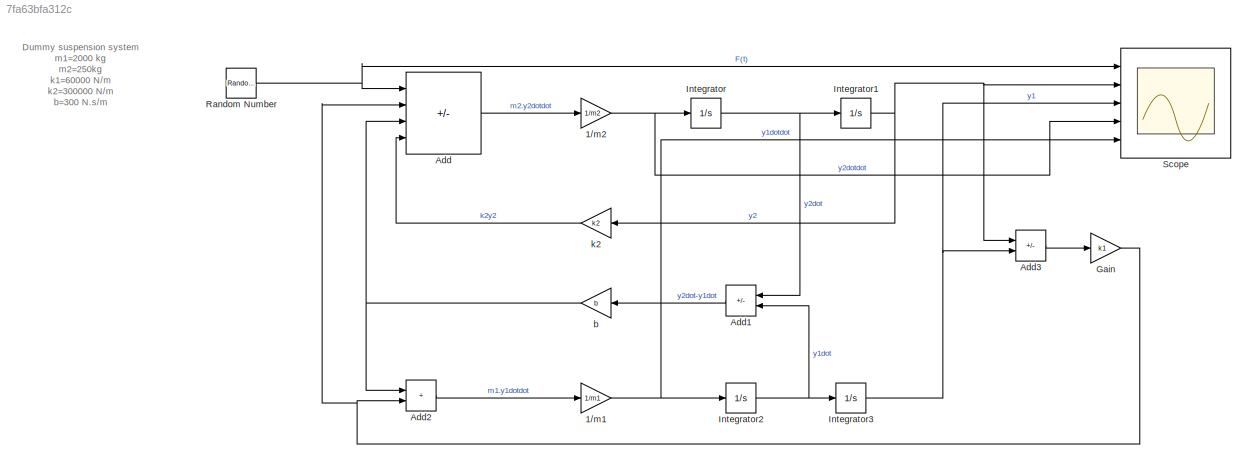
MODEL slx_7fa63bfa312c
KIND model
CONFIG AbsTol = auto
CONFIG EnableMultiTasking = off
CONFIG FixedStep = auto
CONFIG MaxStep = 0.001
CONFIG MinStep = auto
CONFIG RelTol = 1e-3
CONFIG SampleTimeConstraint = Unconstrained
CONFIG SolverName = VariableStepAuto
CONFIG StartTime = 0.0
CONFIG StopTime = 100
BLOCK [Gain] 1//m1
  Gain = 1/m1
BLOCK [Gain] 1//m2
  Gain = 1/m2
BLOCK [Sum] Add
  IconShape = rectangular
  Inputs = +---
  Ports = [4, 1]
BLOCK [Sum] Add1
  IconShape = rectangular
  Inputs = +-
  NameLocation = top
  Ports = [2, 1]
BLOCK [Sum] Add2
  IconShape = rectangular
  Ports = [2, 1]
BLOCK [Sum] Add3
  IconShape = rectangular
  Inputs = +-
  Ports = [2, 1]
BLOCK [Gain] Gain
  Gain = k1
BLOCK [Integrator] Integrator
  Ports = [1, 1]
BLOCK [Integrator] Integrator1
  Ports = [1, 1]
BLOCK [Integrator] Integrator2
  Ports = [1, 1]
BLOCK [Integrator] Integrator3
  Ports = [1, 1]
BLOCK [RandomNumber] Random Number
  SampleTime = 0.1
BLOCK [Scope] Scope
  Floating = off
  NumInputPorts = 5
  Ports = [5]
  ScopeSpecificationString = Simulink.scopes.TimeScopeBlockCfg('CurrentConfiguration', extmgr.ConfigurationSet(extmgr.Configuration('Core','General UI',true),extmgr.Configuration('Core','Source UI',true),extmgr.Configuration('Sources','WiredSimulink',true),extmgr.Configuration('Visuals','Time Domain',true,'SerializedDisplays',{struct('MinYLimReal','-3.70636','MaxYLimReal','3.97505','YLabelReal','','MinYLimMag','0.00000','MaxY...<+4700ch>
BLOCK [Gain] b
  Gain = b
  NameLocation = top
BLOCK [Gain] k2
  Gain = k2
  NameLocation = top
ANNOTATION (root): Dummy suspension system m1=2000 kg m2=250kg k1=60000 N/m k2=300000 N/m b=300 N.s/m
NET 1//m1:1 -> Integrator2:1, Scope:5
NET 1//m2:1 -> Integrator:1, Scope:4
LINE Add1:1 -> b:1
LINE Add2:1 -> 1//m1:1
LINE Add3:1 -> Gain:1
LINE Add:1 -> 1//m2:1
NET Gain:1 -> Add2:2, Add:2
NET Integrator1:1 -> Add3:1, Scope:2, k2:1
NET Integrator2:1 -> Add1:2, Integrator3:1
NET Integrator3:1 -> Add3:2, Scope:3
NET Integrator:1 -> Add1:1, Integrator1:1
NET Random Number:1 -> Add:1, Scope:1
NET b:1 -> Add2:1, Add:3
LINE k2:1 -> Add:4
note: NET lines group one-source signal fan-out (src -> all destinations, sorted); 1:1 wires keep LINE
